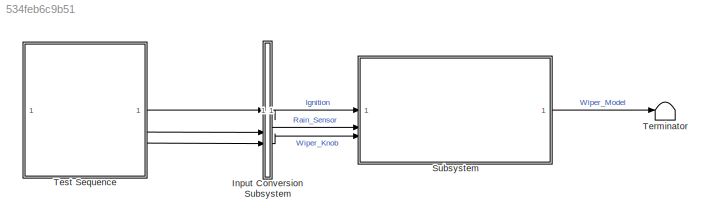
MODEL slx_534feb6c9b51
KIND model
CONFIG AbsTol = auto
CONFIG EnableMultiTasking = off
CONFIG FixedStep = 0.01
CONFIG MaxStep = auto
CONFIG MinStep = auto
CONFIG RelTol = 1e-3
CONFIG SampleTimeConstraint = Unconstrained
CONFIG SolverName = FixedStepAuto
CONFIG StartTime = 0.0
CONFIG StopTime = 10.0
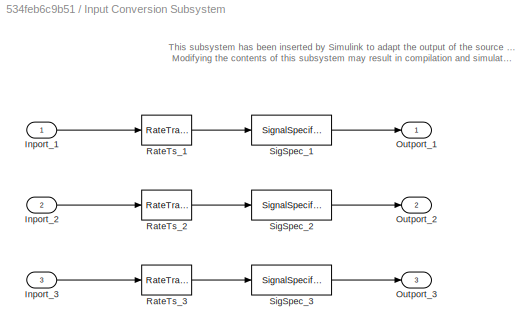
BLOCK [SubSystem] Input Conversion Subsystem
  AttributesFormatString = %<Description>
  Description = Signal spec.\nand routing
  Permissions = ReadOnly
  PermitHierarchicalResolution = ExplicitOnly
  Tag = __SLT_ICS__
  TreatAsGroupedWhenPropagatingVariantConditions = off
  UserDataPersistent = on
BLOCK [Inport] Input Conversion Subsystem/Inport_1
BLOCK [Inport] Input Conversion Subsystem/Inport_2
  Port = 2
BLOCK [Inport] Input Conversion Subsystem/Inport_3
  Port = 3
BLOCK [Outport] Input Conversion Subsystem/Outport_1
BLOCK [Outport] Input Conversion Subsystem/Outport_2
  Port = 2
BLOCK [Outport] Input Conversion Subsystem/Outport_3
  Port = 3
BLOCK [RateTransition] Input Conversion Subsystem/RateTs_1
  OutPortSampleTime = 0.01
BLOCK [RateTransition] Input Conversion Subsystem/RateTs_2
  OutPortSampleTime = 0.01
BLOCK [RateTransition] Input Conversion Subsystem/RateTs_3
  OutPortSampleTime = 0.01
BLOCK [SignalSpecification] Input Conversion Subsystem/SigSpec_1
  Dimensions = [1]
  OutDataTypeStr = double
  SampleTime = 0.01
  SignalType = real
  VarSizeSig = No
BLOCK [SignalSpecification] Input Conversion Subsystem/SigSpec_2
  Dimensions = [1]
  OutDataTypeStr = boolean
  SampleTime = 0.01
  SignalType = real
  VarSizeSig = No
BLOCK [SignalSpecification] Input Conversion Subsystem/SigSpec_3
  Dimensions = [1]
  OutDataTypeStr = boolean
  SampleTime = 0.01
  SignalType = real
  VarSizeSig = No
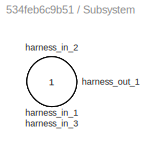
BLOCK [SubSystem] Subsystem
  Tag = __SL_testing_harness_stub_
BLOCK [Inport] Subsystem/harness_in_1
BLOCK [Inport] Subsystem/harness_in_2
  Port = 2
BLOCK [Inport] Subsystem/harness_in_3
  Port = 3
BLOCK [Outport] Subsystem/harness_out_1
BLOCK [Terminator] Terminator
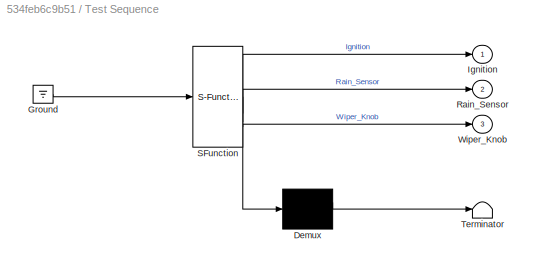
BLOCK [SubSystem] Test Sequence
  ErrorFcn = Stateflow.Translate.translate
  PermitHierarchicalResolution = ExplicitOnly
  SFBlockType = Test Sequence
  ShowPortLabels = none
  TreatAsAtomicUnit = on
BLOCK [Demux] Test Sequence/ Demux 
  Outputs = 1
BLOCK [Ground] Test Sequence/ Ground 
BLOCK [S-Function] Test Sequence/ SFunction 
  EnableBusSupport = on
  FunctionName = sf_sfun
  PortCounts = [1 4]
  SFcnIsStateOwnerBlock = off
  SFunctionDeploymentMode = off
  Tag = Stateflow S-Function 4
BLOCK [Terminator] Test Sequence/ Terminator 
BLOCK [Outport] Test Sequence/Ignition
BLOCK [Outport] Test Sequence/Rain_Sensor
  Port = 2
BLOCK [Outport] Test Sequence/Wiper_Knob
  Port = 3
ANNOTATION Input Conversion Subsystem: This subsystem has been inserted by Simulink to adapt the output of the source blocks to the interface required by the harnessed component. Modifying the contents of this subsystem may result in compilation and simulation failure.
LINE Input Conversion Subsystem/Inport_1:1 -> Input Conversion Subsystem/RateTs_1:1
LINE Input Conversion Subsystem/Inport_2:1 -> Input Conversion Subsystem/RateTs_2:1
LINE Input Conversion Subsystem/Inport_3:1 -> Input Conversion Subsystem/RateTs_3:1
LINE Input Conversion Subsystem/RateTs_1:1 -> Input Conversion Subsystem/SigSpec_1:1
LINE Input Conversion Subsystem/RateTs_2:1 -> Input Conversion Subsystem/SigSpec_2:1
LINE Input Conversion Subsystem/RateTs_3:1 -> Input Conversion Subsystem/SigSpec_3:1
LINE Input Conversion Subsystem/SigSpec_1:1 -> Input Conversion Subsystem/Outport_1:1
LINE Input Conversion Subsystem/SigSpec_2:1 -> Input Conversion Subsystem/Outport_2:1
LINE Input Conversion Subsystem/SigSpec_3:1 -> Input Conversion Subsystem/Outport_3:1
LINE Input Conversion Subsystem:1 -> Subsystem:1
LINE Input Conversion Subsystem:2 -> Subsystem:2
LINE Input Conversion Subsystem:3 -> Subsystem:3
LINE Subsystem:1 -> Terminator:1
LINE Test Sequence:1 -> Input Conversion Subsystem:1
LINE Test Sequence:2 -> Input Conversion Subsystem:2
LINE Test Sequence:3 -> Input Conversion Subsystem:3
CHART Test Sequence states=1 transitions=1
  STATE_LABEL 'TC_03\n%% Initialize data outputs.\nIgnition = 1;\nRain_Sensor = false;\nWiper_Knob = true;'
